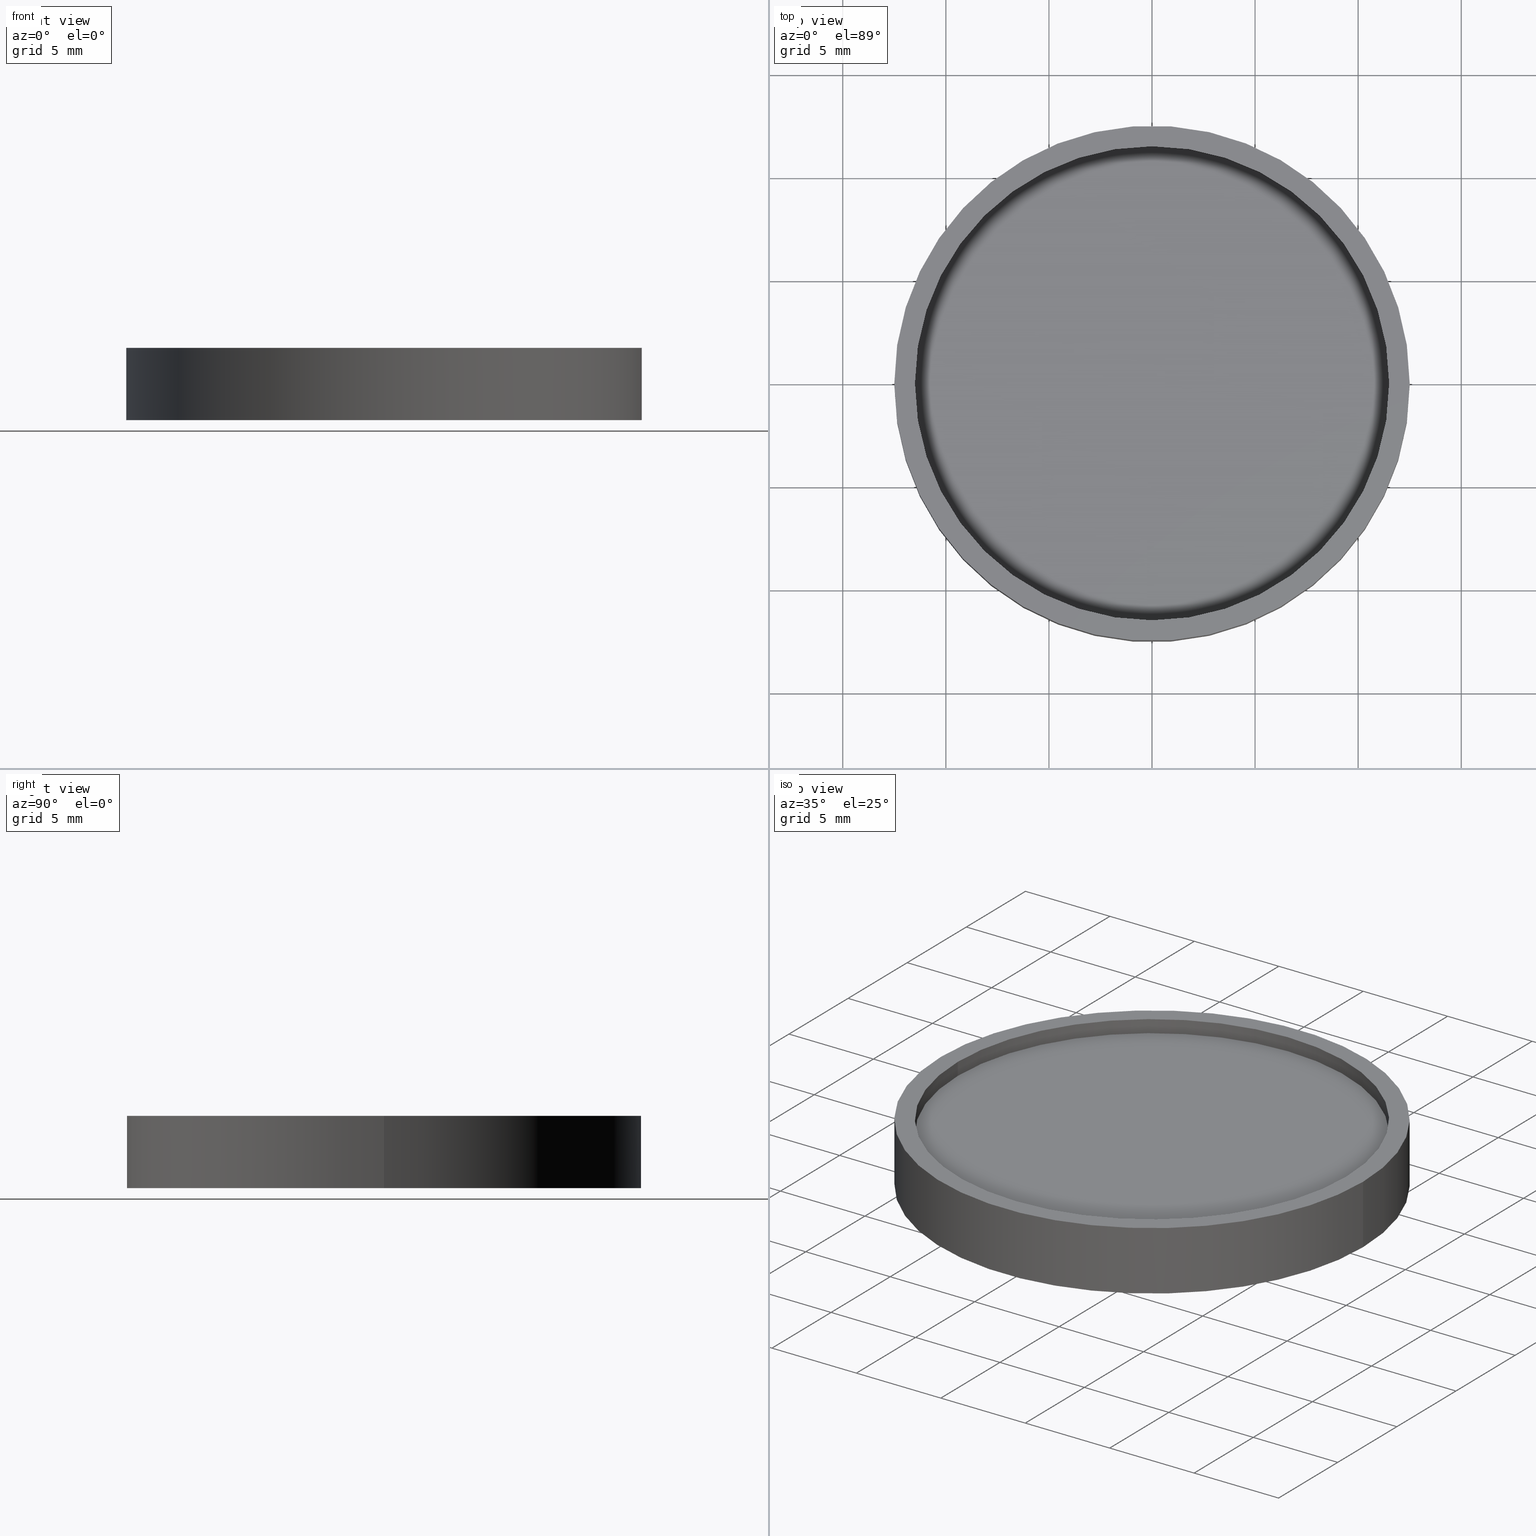
[diagram: canonical four-view strip — front | top / right | iso, engineering-drawing reading convention]
A machine part, canonical four-view strip (front | top / right | iso — engineering-drawing reading convention). The complete STEP part file that produces these views, byte-faithful:
ISO-10303-21;
HEADER;
FILE_DESCRIPTION (( 'STEP AP214' ),
    '1' );
FILE_NAME ('GNIF-045-350-D25.STEP',
    '2024-08-13T06:39:43',
    ( 'Windows User' ),
    ( 'P R C' ),
    'SwSTEP 2.0',
    'SolidWorks 2022',
    '' );
FILE_SCHEMA (( 'AUTOMOTIVE_DESIGN' ));
ENDSEC;

DATA;
#1 = FACE_OUTER_BOUND ( 'NONE', #230, .T. ) ;
#2 = ADVANCED_FACE ( 'NONE', ( #293 ), #280, .F. ) ;
#3 = ORIENTED_EDGE ( 'NONE', *, *, #220, .F. ) ;
#4 = PRESENTATION_STYLE_ASSIGNMENT (( #57 ) ) ;
#5 = EDGE_LOOP ( 'NONE', ( #396, #56 ) ) ;
#6 =( NAMED_UNIT ( * ) SI_UNIT ( $, .STERADIAN. ) SOLID_ANGLE_UNIT ( ) );
#7 = AXIS2_PLACEMENT_3D ( 'NONE', #173, #273, #400 ) ;
#8 = ORIENTED_EDGE ( 'NONE', *, *, #74, .F. ) ;
#9 = FILL_AREA_STYLE_COLOUR ( '', #102 ) ;
#10 = ORIENTED_EDGE ( 'NONE', *, *, #328, .F. ) ;
#11 = PRESENTATION_STYLE_ASSIGNMENT (( #42 ) ) ;
#12 = FACE_OUTER_BOUND ( 'NONE', #107, .T. ) ;
#13 = PLANE ( 'NONE',  #263 ) ;
#14 = VECTOR ( 'NONE', #311, 1000.000000000000000 ) ;
#15 = FILL_AREA_STYLE ('',( #240 ) ) ;
#16 = EDGE_CURVE ( 'NONE', #151, #324, #387, .T. ) ;
#17 = CLOSED_SHELL ( 'NONE', ( #178, #226, #302, #210, #135, #238, #391, #195, #272, #2 ) ) ;
#18 = DIRECTION ( 'NONE',  ( 1.000000000000000000, 0.000000000000000000, 0.000000000000000000 ) ) ;
#19 = MECHANICAL_DESIGN_GEOMETRIC_PRESENTATION_REPRESENTATION (  '', ( #383 ), #129 ) ;
#20 = DIRECTION ( 'NONE',  ( 0.000000000000000000, 0.000000000000000000, -1.000000000000000000 ) ) ;
#21 = AXIS2_PLACEMENT_3D ( 'NONE', #90, #341, #184 ) ;
#22 = FILL_AREA_STYLE ('',( #279 ) ) ;
#23 = EDGE_CURVE ( 'NONE', #324, #151, #369, .T. ) ;
#24 = DIRECTION ( 'NONE',  ( -1.000000000000000000, 0.000000000000000000, 0.000000000000000000 ) ) ;
#25 = AXIS2_PLACEMENT_3D ( 'NONE', #171, #141, #408 ) ;
#26 = ORIENTED_EDGE ( 'NONE', *, *, #51, .F. ) ;
#27 = DIRECTION ( 'NONE',  ( 0.000000000000000000, 0.000000000000000000, 1.000000000000000000 ) ) ;
#28 =( LENGTH_UNIT ( ) NAMED_UNIT ( * ) SI_UNIT ( .MILLI., .METRE. ) );
#29 = FACE_OUTER_BOUND ( 'NONE', #332, .T. ) ;
#30 = FILL_AREA_STYLE ('',( #415 ) ) ;
#31 =( GEOMETRIC_REPRESENTATION_CONTEXT ( 3 ) GLOBAL_UNCERTAINTY_ASSIGNED_CONTEXT ( ( #251 ) ) GLOBAL_UNIT_ASSIGNED_CONTEXT ( ( #123, #152, #315 ) ) REPRESENTATION_CONTEXT ( 'NONE', 'WORKASPACE' ) );
#32 =( GEOMETRIC_REPRESENTATION_CONTEXT ( 3 ) GLOBAL_UNCERTAINTY_ASSIGNED_CONTEXT ( ( #317 ) ) GLOBAL_UNIT_ASSIGNED_CONTEXT ( ( #28, #147, #50 ) ) REPRESENTATION_CONTEXT ( 'NONE', 'WORKASPACE' ) );
#33 = VECTOR ( 'NONE', #112, 1000.000000000000000 ) ;
#34 = PRESENTATION_LAYER_ASSIGNMENT (  '', '', ( #126 ) ) ;
#35 = VERTEX_POINT ( 'NONE', #75 ) ;
#36 = DIRECTION ( 'NONE',  ( 1.000000000000000000, 0.000000000000000000, -0.000000000000000000 ) ) ;
#37 = CIRCLE ( 'NONE', #21, 12.50000000000000000 ) ;
#38 = FILL_AREA_STYLE ('',( #133 ) ) ;
#39 =( NAMED_UNIT ( * ) SI_UNIT ( $, .STERADIAN. ) SOLID_ANGLE_UNIT ( ) );
#40 = AXIS2_PLACEMENT_3D ( 'NONE', #351, #376, #143 ) ;
#41 = SURFACE_SIDE_STYLE ('',( #393 ) ) ;
#42 = SURFACE_STYLE_USAGE ( .BOTH. , #364 ) ;
#43 = EDGE_LOOP ( 'NONE', ( #198, #98 ) ) ;
#44 =( LENGTH_UNIT ( ) NAMED_UNIT ( * ) SI_UNIT ( .MILLI., .METRE. ) );
#45 = SURFACE_STYLE_USAGE ( .BOTH. , #145 ) ;
#46 = FILL_AREA_STYLE_COLOUR ( '', #312 ) ;
#47 = FILL_AREA_STYLE ('',( #9 ) ) ;
#48 = EDGE_CURVE ( 'NONE', #299, #268, #374, .T. ) ;
#49 = DIRECTION ( 'NONE',  ( -0.7071067811865467956, 0.000000000000000000, -0.7071067811865483499 ) ) ;
#50 =( NAMED_UNIT ( * ) SI_UNIT ( $, .STERADIAN. ) SOLID_ANGLE_UNIT ( ) );
#51 = EDGE_CURVE ( 'NONE', #35, #282, #297, .T. ) ;
#52 = AXIS2_PLACEMENT_3D ( 'NONE', #319, #88, #283 ) ;
#53 = STYLED_ITEM ( 'NONE', ( #216 ), #210 ) ;
#54 = FILL_AREA_STYLE_COLOUR ( '', #81 ) ;
#55 = SURFACE_STYLE_FILL_AREA ( #15 ) ;
#56 = ORIENTED_EDGE ( 'NONE', *, *, #328, .T. ) ;
#57 = SURFACE_STYLE_USAGE ( .BOTH. , #163 ) ;
#58 = DIRECTION ( 'NONE',  ( -0.000000000000000000, -0.000000000000000000, -1.000000000000000000 ) ) ;
#59 = UNCERTAINTY_MEASURE_WITH_UNIT (LENGTH_MEASURE( 1.000000000000000082E-05 ), #116, 'distance_accuracy_value', 'NONE');
#60 = CARTESIAN_POINT ( 'NONE',  ( -12.50000000000000000, 0.000000000000000000, 3.500000000000000000 ) ) ;
#61 = SURFACE_SIDE_STYLE ('',( #185 ) ) ;
#62 =( NAMED_UNIT ( * ) PLANE_ANGLE_UNIT ( ) SI_UNIT ( $, .RADIAN. ) );
#63 = DIRECTION ( 'NONE',  ( 0.000000000000000000, 0.000000000000000000, 1.000000000000000000 ) ) ;
#64 = PRESENTATION_STYLE_ASSIGNMENT (( #296 ) ) ;
#65 =( GEOMETRIC_REPRESENTATION_CONTEXT ( 3 ) GLOBAL_UNCERTAINTY_ASSIGNED_CONTEXT ( ( #153 ) ) GLOBAL_UNIT_ASSIGNED_CONTEXT ( ( #389, #419, #223 ) ) REPRESENTATION_CONTEXT ( 'NONE', 'WORKASPACE' ) );
#66 =( NAMED_UNIT ( * ) SI_UNIT ( $, .STERADIAN. ) SOLID_ANGLE_UNIT ( ) );
#67 = ADVANCED_BREP_SHAPE_REPRESENTATION ( 'GNIF-045-350-D25', ( #245, #146 ), #65 ) ;
#68 = ORIENTED_EDGE ( 'NONE', *, *, #257, .F. ) ;
#69 = STYLED_ITEM ( 'NONE', ( #333 ), #245 ) ;
#70 = DIRECTION ( 'NONE',  ( 0.000000000000000000, 0.000000000000000000, 1.000000000000000000 ) ) ;
#71 = STYLED_ITEM ( 'NONE', ( #313 ), #302 ) ;
#72 = ORIENTED_EDGE ( 'NONE', *, *, #48, .F. ) ;
#73 = LINE ( 'NONE', #202, #33 ) ;
#74 = EDGE_CURVE ( 'NONE', #164, #347, #73, .T. ) ;
#75 = CARTESIAN_POINT ( 'NONE',  ( 11.50000000000000000, 0.000000000000000000, 2.750000000000000000 ) ) ;
#76 = EDGE_CURVE ( 'NONE', #138, #151, #235, .T. ) ;
#77 = CARTESIAN_POINT ( 'NONE',  ( 0.000000000000000000, 0.000000000000000000, 0.000000000000000000 ) ) ;
#78 = CARTESIAN_POINT ( 'NONE',  ( 12.50000000000000000, 1.530808498934191521E-15, 3.500000000000000000 ) ) ;
#79 = EDGE_CURVE ( 'NONE', #347, #268, #156, .T. ) ;
#80 = SURFACE_STYLE_FILL_AREA ( #340 ) ;
#81 = COLOUR_RGB ( '',0.2235294117647058654, 0.2235294117647058654, 0.2235294117647058654 ) ;
#82 = CYLINDRICAL_SURFACE ( 'NONE', #162, 11.50000000000000000 ) ;
#83 =( NAMED_UNIT ( * ) SI_UNIT ( $, .STERADIAN. ) SOLID_ANGLE_UNIT ( ) );
#84 = CARTESIAN_POINT ( 'NONE',  ( 11.50000000000000000, 0.000000000000000000, 3.500000000000000000 ) ) ;
#85 = ORIENTED_EDGE ( 'NONE', *, *, #23, .T. ) ;
#86 = SURFACE_STYLE_USAGE ( .BOTH. , #61 ) ;
#87 =( NAMED_UNIT ( * ) PLANE_ANGLE_UNIT ( ) SI_UNIT ( $, .RADIAN. ) );
#88 = DIRECTION ( 'NONE',  ( 0.000000000000000000, 0.000000000000000000, 1.000000000000000000 ) ) ;
#89 = AXIS2_PLACEMENT_3D ( 'NONE', #175, #20, #24 ) ;
#90 = CARTESIAN_POINT ( 'NONE',  ( 0.000000000000000000, 0.000000000000000000, 3.500000000000000000 ) ) ;
#91 = PRESENTATION_LAYER_ASSIGNMENT (  '', '', ( #292 ) ) ;
#92 = VECTOR ( 'NONE', #166, 1000.000000000000000 ) ;
#93 = SURFACE_STYLE_FILL_AREA ( #30 ) ;
#94 = SURFACE_STYLE_FILL_AREA ( #384 ) ;
#95 = APPLICATION_PROTOCOL_DEFINITION ( 'draft international standard', 'automotive_design', 1998, #352 ) ;
#96 =( LENGTH_UNIT ( ) NAMED_UNIT ( * ) SI_UNIT ( .MILLI., .METRE. ) );
#97 = SURFACE_STYLE_USAGE ( .BOTH. , #192 ) ;
#98 = ORIENTED_EDGE ( 'NONE', *, *, #16, .F. ) ;
#99 =( LENGTH_UNIT ( ) NAMED_UNIT ( * ) SI_UNIT ( .MILLI., .METRE. ) );
#100 = PRESENTATION_LAYER_ASSIGNMENT (  '', '', ( #330 ) ) ;
#101 = ORIENTED_EDGE ( 'NONE', *, *, #401, .F. ) ;
#102 = COLOUR_RGB ( '',1.000000000000000000, 1.000000000000000000, 1.000000000000000000 ) ;
#103 = FILL_AREA_STYLE_COLOUR ( '', #343 ) ;
#104 = PRESENTATION_LAYER_ASSIGNMENT (  '', '', ( #418 ) ) ;
#105 = ORIENTED_EDGE ( 'NONE', *, *, #334, .F. ) ;
#106 = MECHANICAL_DESIGN_GEOMETRIC_PRESENTATION_REPRESENTATION (  '', ( #330 ), #32 ) ;
#107 = EDGE_LOOP ( 'NONE', ( #191, #119 ) ) ;
#108 = CARTESIAN_POINT ( 'NONE',  ( -12.25000000000000711, 0.000000000000000000, 0.000000000000000000 ) ) ;
#109 = CARTESIAN_POINT ( 'NONE',  ( 0.000000000000000000, 0.000000000000000000, 3.500000000000000000 ) ) ;
#110 = LINE ( 'NONE', #269, #228 ) ;
#111 = MECHANICAL_DESIGN_GEOMETRIC_PRESENTATION_REPRESENTATION (  '', ( #69 ), #165 ) ;
#112 = DIRECTION ( 'NONE',  ( 0.7071067811865467956, 8.659560562354925463E-17, -0.7071067811865483499 ) ) ;
#113 = FACE_OUTER_BOUND ( 'NONE', #329, .T. ) ;
#114 = MECHANICAL_DESIGN_GEOMETRIC_PRESENTATION_REPRESENTATION (  '', ( #385 ), #342 ) ;
#115 =( NAMED_UNIT ( * ) PLANE_ANGLE_UNIT ( ) SI_UNIT ( $, .RADIAN. ) );
#116 =( LENGTH_UNIT ( ) NAMED_UNIT ( * ) SI_UNIT ( .MILLI., .METRE. ) );
#117 = DIRECTION ( 'NONE',  ( -1.000000000000000000, 0.000000000000000000, 0.000000000000000000 ) ) ;
#118 = SURFACE_SIDE_STYLE ('',( #177 ) ) ;
#119 = ORIENTED_EDGE ( 'NONE', *, *, #334, .T. ) ;
#120 = CARTESIAN_POINT ( 'NONE',  ( 0.000000000000000000, 0.000000000000000000, 2.750000000000000000 ) ) ;
#121 = COLOUR_RGB ( '',0.2235294117647058654, 0.2235294117647058654, 0.2235294117647058654 ) ;
#122 = CARTESIAN_POINT ( 'NONE',  ( -11.50000000000000000, 1.408343819019456176E-15, 3.500000000000000000 ) ) ;
#123 =( LENGTH_UNIT ( ) NAMED_UNIT ( * ) SI_UNIT ( .MILLI., .METRE. ) );
#124 = EDGE_CURVE ( 'NONE', #299, #164, #392, .T. ) ;
#125 = UNCERTAINTY_MEASURE_WITH_UNIT (LENGTH_MEASURE( 1.000000000000000082E-05 ), #44, 'distance_accuracy_value', 'NONE');
#126 = STYLED_ITEM ( 'NONE', ( #281 ), #178 ) ;
#127 =( NAMED_UNIT ( * ) PLANE_ANGLE_UNIT ( ) SI_UNIT ( $, .RADIAN. ) );
#128 = CONICAL_SURFACE ( 'NONE', #159, 11.50000000000000000, 0.7853981633974471688 ) ;
#129 =( GEOMETRIC_REPRESENTATION_CONTEXT ( 3 ) GLOBAL_UNCERTAINTY_ASSIGNED_CONTEXT ( ( #187 ) ) GLOBAL_UNIT_ASSIGNED_CONTEXT ( ( #361, #229, #139 ) ) REPRESENTATION_CONTEXT ( 'NONE', 'WORKASPACE' ) );
#130 = SHAPE_DEFINITION_REPRESENTATION ( #189, #67 ) ;
#131 = CIRCLE ( 'NONE', #366, 11.50000000000000000 ) ;
#132 = ORIENTED_EDGE ( 'NONE', *, *, #124, .F. ) ;
#133 = FILL_AREA_STYLE_COLOUR ( '', #236 ) ;
#134 = PLANE ( 'NONE',  #322 ) ;
#135 = ADVANCED_FACE ( 'NONE', ( #306, #404 ), #13, .T. ) ;
#136 = ORIENTED_EDGE ( 'NONE', *, *, #79, .T. ) ;
#137 = PRODUCT_DEFINITION ( 'δ֪', '', #286, #182 ) ;
#138 = VERTEX_POINT ( 'NONE', #78 ) ;
#139 =( NAMED_UNIT ( * ) SI_UNIT ( $, .STERADIAN. ) SOLID_ANGLE_UNIT ( ) );
#140 = PLANE ( 'NONE',  #218 ) ;
#141 = DIRECTION ( 'NONE',  ( 0.000000000000000000, 0.000000000000000000, 1.000000000000000000 ) ) ;
#142 = MECHANICAL_DESIGN_GEOMETRIC_PRESENTATION_REPRESENTATION (  '', ( #292 ), #197 ) ;
#143 = DIRECTION ( 'NONE',  ( -1.000000000000000000, 0.000000000000000000, 0.000000000000000000 ) ) ;
#144 =( GEOMETRIC_REPRESENTATION_CONTEXT ( 3 ) GLOBAL_UNCERTAINTY_ASSIGNED_CONTEXT ( ( #287 ) ) GLOBAL_UNIT_ASSIGNED_CONTEXT ( ( #246, #348, #6 ) ) REPRESENTATION_CONTEXT ( 'NONE', 'WORKASPACE' ) );
#145 = SURFACE_SIDE_STYLE ('',( #278 ) ) ;
#146 = AXIS2_PLACEMENT_3D ( 'NONE', #255, #356, #386 ) ;
#147 =( NAMED_UNIT ( * ) PLANE_ANGLE_UNIT ( ) SI_UNIT ( $, .RADIAN. ) );
#148 = ORIENTED_EDGE ( 'NONE', *, *, #74, .T. ) ;
#149 = SURFACE_SIDE_STYLE ('',( #80 ) ) ;
#150 = DIRECTION ( 'NONE',  ( 1.000000000000000000, 0.000000000000000000, 0.000000000000000000 ) ) ;
#151 = VERTEX_POINT ( 'NONE', #371 ) ;
#152 =( NAMED_UNIT ( * ) PLANE_ANGLE_UNIT ( ) SI_UNIT ( $, .RADIAN. ) );
#153 = UNCERTAINTY_MEASURE_WITH_UNIT (LENGTH_MEASURE( 1.000000000000000082E-05 ), #389, 'distance_accuracy_value', 'NONE');
#154 = CARTESIAN_POINT ( 'NONE',  ( 0.000000000000000000, 0.000000000000000000, 3.500000000000000000 ) ) ;
#155 = CYLINDRICAL_SURFACE ( 'NONE', #417, 11.50000000000000000 ) ;
#156 = CIRCLE ( 'NONE', #271, 12.25000000000000711 ) ;
#157 = DIRECTION ( 'NONE',  ( 1.000000000000000000, 0.000000000000000000, 0.000000000000000000 ) ) ;
#158 = PRESENTATION_LAYER_ASSIGNMENT (  '', '', ( #69 ) ) ;
#159 = AXIS2_PLACEMENT_3D ( 'NONE', #205, #353, #359 ) ;
#160 = PRESENTATION_STYLE_ASSIGNMENT (( #97 ) ) ;
#161 =( GEOMETRIC_REPRESENTATION_CONTEXT ( 3 ) GLOBAL_UNCERTAINTY_ASSIGNED_CONTEXT ( ( #413 ) ) GLOBAL_UNIT_ASSIGNED_CONTEXT ( ( #99, #127, #224 ) ) REPRESENTATION_CONTEXT ( 'NONE', 'WORKASPACE' ) );
#162 = AXIS2_PLACEMENT_3D ( 'NONE', #409, #284, #412 ) ;
#163 = SURFACE_SIDE_STYLE ('',( #94 ) ) ;
#164 = VERTEX_POINT ( 'NONE', #375 ) ;
#165 =( GEOMETRIC_REPRESENTATION_CONTEXT ( 3 ) GLOBAL_UNCERTAINTY_ASSIGNED_CONTEXT ( ( #125 ) ) GLOBAL_UNIT_ASSIGNED_CONTEXT ( ( #44, #267, #39 ) ) REPRESENTATION_CONTEXT ( 'NONE', 'WORKASPACE' ) );
#166 = DIRECTION ( 'NONE',  ( -0.000000000000000000, -0.000000000000000000, 1.000000000000000000 ) ) ;
#167 = ORIENTED_EDGE ( 'NONE', *, *, #220, .T. ) ;
#168 = ORIENTED_EDGE ( 'NONE', *, *, #222, .F. ) ;
#169 = CARTESIAN_POINT ( 'NONE',  ( 0.000000000000000000, 0.000000000000000000, 2.750000000000000000 ) ) ;
#170 = ORIENTED_EDGE ( 'NONE', *, *, #288, .F. ) ;
#171 = CARTESIAN_POINT ( 'NONE',  ( 0.000000000000000000, 0.000000000000000000, 0.000000000000000000 ) ) ;
#172 = SURFACE_STYLE_USAGE ( .BOTH. , #234 ) ;
#173 = CARTESIAN_POINT ( 'NONE',  ( 0.000000000000000000, 0.000000000000000000, 0.000000000000000000 ) ) ;
#174 = DIRECTION ( 'NONE',  ( 0.000000000000000000, 0.000000000000000000, -1.000000000000000000 ) ) ;
#175 = CARTESIAN_POINT ( 'NONE',  ( 0.000000000000000000, 0.000000000000000000, 0.7500000000000000000 ) ) ;
#176 = MECHANICAL_DESIGN_GEOMETRIC_PRESENTATION_REPRESENTATION (  '', ( #418 ), #144 ) ;
#177 = SURFACE_STYLE_FILL_AREA ( #22 ) ;
#178 = ADVANCED_FACE ( 'NONE', ( #345 ), #128, .F. ) ;
#179 = CARTESIAN_POINT ( 'NONE',  ( 0.000000000000000000, 0.000000000000000000, 2.750000000000000000 ) ) ;
#180 = CARTESIAN_POINT ( 'NONE',  ( -12.50000000000000000, 0.000000000000000000, 3.500000000000000000 ) ) ;
#181 = AXIS2_PLACEMENT_3D ( 'NONE', #349, #274, #406 ) ;
#182 = PRODUCT_DEFINITION_CONTEXT ( 'detailed design', #352, 'design' ) ;
#183 = ORIENTED_EDGE ( 'NONE', *, *, #401, .T. ) ;
#184 = DIRECTION ( 'NONE',  ( 1.000000000000000000, 0.000000000000000000, 0.000000000000000000 ) ) ;
#185 = SURFACE_STYLE_FILL_AREA ( #411 ) ;
#186 = FACE_OUTER_BOUND ( 'NONE', #295, .T. ) ;
#187 = UNCERTAINTY_MEASURE_WITH_UNIT (LENGTH_MEASURE( 1.000000000000000082E-05 ), #361, 'distance_accuracy_value', 'NONE');
#188 = PLANE ( 'NONE',  #377 ) ;
#189 = PRODUCT_DEFINITION_SHAPE ( 'NONE', 'NONE',  #137 ) ;
#190 = MECHANICAL_DESIGN_GEOMETRIC_PRESENTATION_REPRESENTATION (  '', ( #53 ), #31 ) ;
#191 = ORIENTED_EDGE ( 'NONE', *, *, #124, .T. ) ;
#192 = SURFACE_SIDE_STYLE ('',( #93 ) ) ;
#193 = MECHANICAL_DESIGN_GEOMETRIC_PRESENTATION_REPRESENTATION (  '', ( #249 ), #354 ) ;
#194 = ORIENTED_EDGE ( 'NONE', *, *, #259, .T. ) ;
#195 = ADVANCED_FACE ( 'NONE', ( #323 ), #188, .T. ) ;
#196 = CARTESIAN_POINT ( 'NONE',  ( 11.50000000000000000, 0.000000000000000000, 2.750000000000000000 ) ) ;
#197 =( GEOMETRIC_REPRESENTATION_CONTEXT ( 3 ) GLOBAL_UNCERTAINTY_ASSIGNED_CONTEXT ( ( #215 ) ) GLOBAL_UNIT_ASSIGNED_CONTEXT ( ( #360, #225, #66 ) ) REPRESENTATION_CONTEXT ( 'NONE', 'WORKASPACE' ) );
#198 = ORIENTED_EDGE ( 'NONE', *, *, #23, .F. ) ;
#199 = DIRECTION ( 'NONE',  ( -0.000000000000000000, -0.000000000000000000, 1.000000000000000000 ) ) ;
#200 = EDGE_LOOP ( 'NONE', ( #105, #148, #168, #72 ) ) ;
#201 = ORIENTED_EDGE ( 'NONE', *, *, #206, .T. ) ;
#202 = CARTESIAN_POINT ( 'NONE',  ( 11.50000000000000000, 1.408343819019456176E-15, 0.7500000000000093259 ) ) ;
#203 = CARTESIAN_POINT ( 'NONE',  ( 0.000000000000000000, 0.000000000000000000, 0.000000000000000000 ) ) ;
#204 = PRESENTATION_LAYER_ASSIGNMENT (  '', '', ( #71 ) ) ;
#205 = CARTESIAN_POINT ( 'NONE',  ( 0.000000000000000000, 0.000000000000000000, 0.7500000000000093259 ) ) ;
#206 = EDGE_CURVE ( 'NONE', #35, #362, #285, .T. ) ;
#207 = DIRECTION ( 'NONE',  ( 0.000000000000000000, 0.000000000000000000, 1.000000000000000000 ) ) ;
#208 = SURFACE_STYLE_USAGE ( .BOTH. , #149 ) ;
#209 =( LENGTH_UNIT ( ) NAMED_UNIT ( * ) SI_UNIT ( .MILLI., .METRE. ) );
#210 = ADVANCED_FACE ( 'NONE', ( #1 ), #318, .T. ) ;
#211 = LINE ( 'NONE', #60, #346 ) ;
#212 = ORIENTED_EDGE ( 'NONE', *, *, #76, .T. ) ;
#213 = CIRCLE ( 'NONE', #181, 11.50000000000000000 ) ;
#214 = CYLINDRICAL_SURFACE ( 'NONE', #40, 12.50000000000000000 ) ;
#215 = UNCERTAINTY_MEASURE_WITH_UNIT (LENGTH_MEASURE( 1.000000000000000082E-05 ), #360, 'distance_accuracy_value', 'NONE');
#216 = PRESENTATION_STYLE_ASSIGNMENT (( #86 ) ) ;
#217 = CARTESIAN_POINT ( 'NONE',  ( 0.000000000000000000, 0.000000000000000000, 3.500000000000000000 ) ) ;
#218 = AXIS2_PLACEMENT_3D ( 'NONE', #237, #174, #304 ) ;
#219 =( NAMED_UNIT ( * ) SI_UNIT ( $, .STERADIAN. ) SOLID_ANGLE_UNIT ( ) );
#220 = EDGE_CURVE ( 'NONE', #362, #365, #227, .T. ) ;
#221 = CARTESIAN_POINT ( 'NONE',  ( 0.000000000000000000, 0.000000000000000000, 0.7500000000000093259 ) ) ;
#222 = EDGE_CURVE ( 'NONE', #268, #347, #275, .T. ) ;
#223 =( NAMED_UNIT ( * ) SI_UNIT ( $, .STERADIAN. ) SOLID_ANGLE_UNIT ( ) );
#224 =( NAMED_UNIT ( * ) SI_UNIT ( $, .STERADIAN. ) SOLID_ANGLE_UNIT ( ) );
#225 =( NAMED_UNIT ( * ) PLANE_ANGLE_UNIT ( ) SI_UNIT ( $, .RADIAN. ) );
#226 = ADVANCED_FACE ( 'NONE', ( #29 ), #155, .F. ) ;
#227 = CIRCLE ( 'NONE', #344, 11.50000000000000000 ) ;
#228 = VECTOR ( 'NONE', #395, 1000.000000000000000 ) ;
#229 =( NAMED_UNIT ( * ) PLANE_ANGLE_UNIT ( ) SI_UNIT ( $, .RADIAN. ) );
#230 = EDGE_LOOP ( 'NONE', ( #265, #170, #335, #85 ) ) ;
#231 = MECHANICAL_DESIGN_GEOMETRIC_PRESENTATION_REPRESENTATION (  '', ( #126 ), #161 ) ;
#232 = COLOUR_RGB ( '',0.2235294117647058654, 0.2235294117647058654, 0.2235294117647058654 ) ;
#233 = EDGE_LOOP ( 'NONE', ( #388, #183 ) ) ;
#234 = SURFACE_SIDE_STYLE ('',( #372 ) ) ;
#235 = LINE ( 'NONE', #239, #14 ) ;
#236 = COLOUR_RGB ( '',0.2235294117647058654, 0.2235294117647058654, 0.2235294117647058654 ) ;
#237 = CARTESIAN_POINT ( 'NONE',  ( 0.000000000000000000, 0.000000000000000000, 0.7500000000000000000 ) ) ;
#238 = ADVANCED_FACE ( 'NONE', ( #331, #327 ), #134, .F. ) ;
#239 = CARTESIAN_POINT ( 'NONE',  ( 12.50000000000000000, 1.530808498934191521E-15, 3.500000000000000000 ) ) ;
#240 = FILL_AREA_STYLE_COLOUR ( '', #121 ) ;
#241 = DIRECTION ( 'NONE',  ( 0.000000000000000000, 0.000000000000000000, -1.000000000000000000 ) ) ;
#242 = PRESENTATION_LAYER_ASSIGNMENT (  '', '', ( #385 ) ) ;
#243 = CARTESIAN_POINT ( 'NONE',  ( -12.50000000000000000, 0.000000000000000000, 0.000000000000000000 ) ) ;
#244 = DIRECTION ( 'NONE',  ( 1.000000000000000000, 0.000000000000000000, -0.000000000000000000 ) ) ;
#245 = MANIFOLD_SOLID_BREP ( '����1', #17 ) ;
#246 =( LENGTH_UNIT ( ) NAMED_UNIT ( * ) SI_UNIT ( .MILLI., .METRE. ) );
#247 =( NAMED_UNIT ( * ) SI_UNIT ( $, .STERADIAN. ) SOLID_ANGLE_UNIT ( ) );
#248 = ORIENTED_EDGE ( 'NONE', *, *, #259, .F. ) ;
#249 = STYLED_ITEM ( 'NONE', ( #160 ), #67 ) ;
#250 = CARTESIAN_POINT ( 'NONE',  ( 0.000000000000000000, 0.000000000000000000, 2.750000000000000000 ) ) ;
#251 = UNCERTAINTY_MEASURE_WITH_UNIT (LENGTH_MEASURE( 1.000000000000000082E-05 ), #123, 'distance_accuracy_value', 'NONE');
#252 = DIRECTION ( 'NONE',  ( -1.000000000000000000, 0.000000000000000000, 0.000000000000000000 ) ) ;
#253 = COLOUR_RGB ( '',0.2235294117647058654, 0.2235294117647058654, 0.2235294117647058654 ) ;
#254 = FILL_AREA_STYLE_COLOUR ( '', #363 ) ;
#255 = CARTESIAN_POINT ( 'NONE',  ( 0.000000000000000000, 0.000000000000000000, 0.000000000000000000 ) ) ;
#256 = PRODUCT ( 'GNIF-045-350-D25', 'GNIF-045-350-D25', '', ( #358 ) ) ;
#257 = EDGE_CURVE ( 'NONE', #365, #362, #398, .T. ) ;
#258 = ORIENTED_EDGE ( 'NONE', *, *, #48, .T. ) ;
#259 = EDGE_CURVE ( 'NONE', #282, #365, #110, .T. ) ;
#260 = ORIENTED_EDGE ( 'NONE', *, *, #16, .T. ) ;
#261 = CARTESIAN_POINT ( 'NONE',  ( -11.50000000000000000, 1.408343819019456176E-15, 2.750000000000000000 ) ) ;
#262 = ORIENTED_EDGE ( 'NONE', *, *, #222, .T. ) ;
#263 = AXIS2_PLACEMENT_3D ( 'NONE', #109, #373, #244 ) ;
#264 = SURFACE_STYLE_FILL_AREA ( #270 ) ;
#265 = ORIENTED_EDGE ( 'NONE', *, *, #76, .F. ) ;
#266 = AXIS2_PLACEMENT_3D ( 'NONE', #154, #416, #252 ) ;
#267 =( NAMED_UNIT ( * ) PLANE_ANGLE_UNIT ( ) SI_UNIT ( $, .RADIAN. ) );
#268 = VERTEX_POINT ( 'NONE', #108 ) ;
#269 = CARTESIAN_POINT ( 'NONE',  ( -11.50000000000000000, 1.408343819019456176E-15, 2.750000000000000000 ) ) ;
#270 = FILL_AREA_STYLE ('',( #103 ) ) ;
#271 = AXIS2_PLACEMENT_3D ( 'NONE', #203, #337, #18 ) ;
#272 = ADVANCED_FACE ( 'NONE', ( #12 ), #140, .T. ) ;
#273 = DIRECTION ( 'NONE',  ( 0.000000000000000000, 0.000000000000000000, 1.000000000000000000 ) ) ;
#274 = DIRECTION ( 'NONE',  ( 0.000000000000000000, 0.000000000000000000, -1.000000000000000000 ) ) ;
#275 = CIRCLE ( 'NONE', #52, 12.25000000000000711 ) ;
#276 = SURFACE_SIDE_STYLE ('',( #55 ) ) ;
#277 = CIRCLE ( 'NONE', #339, 12.50000000000000000 ) ;
#278 = SURFACE_STYLE_FILL_AREA ( #336 ) ;
#279 = FILL_AREA_STYLE_COLOUR ( '', #232 ) ;
#280 = CONICAL_SURFACE ( 'NONE', #355, 11.50000000000000000, 0.7853981633974471688 ) ;
#281 = PRESENTATION_STYLE_ASSIGNMENT (( #208 ) ) ;
#282 = VERTEX_POINT ( 'NONE', #261 ) ;
#283 = DIRECTION ( 'NONE',  ( 1.000000000000000000, 0.000000000000000000, 0.000000000000000000 ) ) ;
#284 = DIRECTION ( 'NONE',  ( -0.000000000000000000, -0.000000000000000000, 1.000000000000000000 ) ) ;
#285 = LINE ( 'NONE', #196, #92 ) ;
#286 = PRODUCT_DEFINITION_FORMATION_WITH_SPECIFIED_SOURCE ( '�κ�', '', #256, .NOT_KNOWN. ) ;
#287 = UNCERTAINTY_MEASURE_WITH_UNIT (LENGTH_MEASURE( 1.000000000000000082E-05 ), #246, 'distance_accuracy_value', 'NONE');
#288 = EDGE_CURVE ( 'NONE', #390, #138, #37, .T. ) ;
#289 = APPLICATION_PROTOCOL_DEFINITION ( 'draft international standard', 'automotive_design', 1998, #357 ) ;
#290 = MECHANICAL_DESIGN_GEOMETRIC_PRESENTATION_REPRESENTATION (  '', ( #71 ), #310 ) ;
#291 = ORIENTED_EDGE ( 'NONE', *, *, #206, .F. ) ;
#292 = STYLED_ITEM ( 'NONE', ( #64 ), #2 ) ;
#293 = FACE_OUTER_BOUND ( 'NONE', #410, .T. ) ;
#294 = DIRECTION ( 'NONE',  ( 1.000000000000000000, 0.000000000000000000, 0.000000000000000000 ) ) ;
#295 = EDGE_LOOP ( 'NONE', ( #248, #26, #201, #167 ) ) ;
#296 = SURFACE_STYLE_USAGE ( .BOTH. , #41 ) ;
#297 = CIRCLE ( 'NONE', #305, 11.50000000000000000 ) ;
#298 = DIRECTION ( 'NONE',  ( 1.000000000000000000, 0.000000000000000000, -0.000000000000000000 ) ) ;
#299 = VERTEX_POINT ( 'NONE', #382 ) ;
#300 = DIRECTION ( 'NONE',  ( 1.000000000000000000, 0.000000000000000000, 0.000000000000000000 ) ) ;
#301 = PRESENTATION_STYLE_ASSIGNMENT (( #45 ) ) ;
#302 = ADVANCED_FACE ( 'NONE', ( #113 ), #214, .T. ) ;
#303 = DIRECTION ( 'NONE',  ( 1.000000000000000000, 0.000000000000000000, 0.000000000000000000 ) ) ;
#304 = DIRECTION ( 'NONE',  ( -1.000000000000000000, 0.000000000000000000, -0.000000000000000000 ) ) ;
#305 = AXIS2_PLACEMENT_3D ( 'NONE', #179, #397, #303 ) ;
#306 = FACE_BOUND ( 'NONE', #325, .T. ) ;
#307 = PRESENTATION_LAYER_ASSIGNMENT (  '', '', ( #383 ) ) ;
#308 = AXIS2_PLACEMENT_3D ( 'NONE', #367, #370, #300 ) ;
#309 = SURFACE_STYLE_USAGE ( .BOTH. , #276 ) ;
#310 =( GEOMETRIC_REPRESENTATION_CONTEXT ( 3 ) GLOBAL_UNCERTAINTY_ASSIGNED_CONTEXT ( ( #59 ) ) GLOBAL_UNIT_ASSIGNED_CONTEXT ( ( #116, #87, #247 ) ) REPRESENTATION_CONTEXT ( 'NONE', 'WORKASPACE' ) );
#311 = DIRECTION ( 'NONE',  ( -0.000000000000000000, -0.000000000000000000, -1.000000000000000000 ) ) ;
#312 = COLOUR_RGB ( '',0.2235294117647058654, 0.2235294117647058654, 0.2235294117647058654 ) ;
#313 = PRESENTATION_STYLE_ASSIGNMENT (( #379 ) ) ;
#314 = EDGE_LOOP ( 'NONE', ( #262, #136 ) ) ;
#315 =( NAMED_UNIT ( * ) SI_UNIT ( $, .STERADIAN. ) SOLID_ANGLE_UNIT ( ) );
#316 = PRESENTATION_STYLE_ASSIGNMENT (( #309 ) ) ;
#317 = UNCERTAINTY_MEASURE_WITH_UNIT (LENGTH_MEASURE( 1.000000000000000082E-05 ), #28, 'distance_accuracy_value', 'NONE');
#318 = CYLINDRICAL_SURFACE ( 'NONE', #266, 12.50000000000000000 ) ;
#319 = CARTESIAN_POINT ( 'NONE',  ( 0.000000000000000000, 0.000000000000000000, 0.000000000000000000 ) ) ;
#320 = CARTESIAN_POINT ( 'NONE',  ( 0.000000000000000000, 0.000000000000000000, 3.500000000000000000 ) ) ;
#321 = PRODUCT_RELATED_PRODUCT_CATEGORY ( 'part', '', ( #256 ) ) ;
#322 = AXIS2_PLACEMENT_3D ( 'NONE', #77, #70, #298 ) ;
#323 = FACE_OUTER_BOUND ( 'NONE', #5, .T. ) ;
#324 = VERTEX_POINT ( 'NONE', #243 ) ;
#325 = EDGE_LOOP ( 'NONE', ( #3, #68 ) ) ;
#326 = PRESENTATION_LAYER_ASSIGNMENT (  '', '', ( #53 ) ) ;
#327 = FACE_OUTER_BOUND ( 'NONE', #43, .T. ) ;
#328 = EDGE_CURVE ( 'NONE', #282, #35, #131, .T. ) ;
#329 = EDGE_LOOP ( 'NONE', ( #101, #212, #260, #394 ) ) ;
#330 = STYLED_ITEM ( 'NONE', ( #316 ), #391 ) ;
#331 = FACE_BOUND ( 'NONE', #314, .T. ) ;
#332 = EDGE_LOOP ( 'NONE', ( #10, #194, #403, #291 ) ) ;
#333 = PRESENTATION_STYLE_ASSIGNMENT (( #172 ) ) ;
#334 = EDGE_CURVE ( 'NONE', #164, #299, #213, .T. ) ;
#335 = ORIENTED_EDGE ( 'NONE', *, *, #350, .T. ) ;
#336 = FILL_AREA_STYLE ('',( #46 ) ) ;
#337 = DIRECTION ( 'NONE',  ( 0.000000000000000000, 0.000000000000000000, 1.000000000000000000 ) ) ;
#338 = DIRECTION ( 'NONE',  ( 1.000000000000000000, 0.000000000000000000, 0.000000000000000000 ) ) ;
#339 = AXIS2_PLACEMENT_3D ( 'NONE', #320, #63, #157 ) ;
#340 = FILL_AREA_STYLE ('',( #54 ) ) ;
#341 = DIRECTION ( 'NONE',  ( 0.000000000000000000, 0.000000000000000000, 1.000000000000000000 ) ) ;
#342 =( GEOMETRIC_REPRESENTATION_CONTEXT ( 3 ) GLOBAL_UNCERTAINTY_ASSIGNED_CONTEXT ( ( #380 ) ) GLOBAL_UNIT_ASSIGNED_CONTEXT ( ( #209, #115, #83 ) ) REPRESENTATION_CONTEXT ( 'NONE', 'WORKASPACE' ) );
#343 = COLOUR_RGB ( '',0.2235294117647058654, 0.2235294117647058654, 0.2235294117647058654 ) ;
#344 = AXIS2_PLACEMENT_3D ( 'NONE', #217, #378, #294 ) ;
#345 = FACE_OUTER_BOUND ( 'NONE', #200, .T. ) ;
#346 = VECTOR ( 'NONE', #58, 1000.000000000000000 ) ;
#347 = VERTEX_POINT ( 'NONE', #399 ) ;
#348 =( NAMED_UNIT ( * ) PLANE_ANGLE_UNIT ( ) SI_UNIT ( $, .RADIAN. ) );
#349 = CARTESIAN_POINT ( 'NONE',  ( 0.000000000000000000, 0.000000000000000000, 0.7500000000000000000 ) ) ;
#350 = EDGE_CURVE ( 'NONE', #390, #324, #211, .T. ) ;
#351 = CARTESIAN_POINT ( 'NONE',  ( 0.000000000000000000, 0.000000000000000000, 3.500000000000000000 ) ) ;
#352 = APPLICATION_CONTEXT ( 'automotive_design' ) ;
#353 = DIRECTION ( 'NONE',  ( 0.000000000000000000, 0.000000000000000000, -1.000000000000000000 ) ) ;
#354 =( GEOMETRIC_REPRESENTATION_CONTEXT ( 3 ) GLOBAL_UNCERTAINTY_ASSIGNED_CONTEXT ( ( #407 ) ) GLOBAL_UNIT_ASSIGNED_CONTEXT ( ( #96, #62, #219 ) ) REPRESENTATION_CONTEXT ( 'NONE', 'WORKASPACE' ) );
#355 = AXIS2_PLACEMENT_3D ( 'NONE', #221, #241, #117 ) ;
#356 = DIRECTION ( 'NONE',  ( 0.000000000000000000, 0.000000000000000000, 1.000000000000000000 ) ) ;
#357 = APPLICATION_CONTEXT ( 'automotive_design' ) ;
#358 = PRODUCT_CONTEXT ( 'NONE', #357, 'mechanical' ) ;
#359 = DIRECTION ( 'NONE',  ( -1.000000000000000000, 0.000000000000000000, 0.000000000000000000 ) ) ;
#360 =( LENGTH_UNIT ( ) NAMED_UNIT ( * ) SI_UNIT ( .MILLI., .METRE. ) );
#361 =( LENGTH_UNIT ( ) NAMED_UNIT ( * ) SI_UNIT ( .MILLI., .METRE. ) );
#362 = VERTEX_POINT ( 'NONE', #84 ) ;
#363 = COLOUR_RGB ( '',0.2235294117647058654, 0.2235294117647058654, 0.2235294117647058654 ) ;
#364 = SURFACE_SIDE_STYLE ('',( #264 ) ) ;
#365 = VERTEX_POINT ( 'NONE', #122 ) ;
#366 = AXIS2_PLACEMENT_3D ( 'NONE', #250, #207, #150 ) ;
#367 = CARTESIAN_POINT ( 'NONE',  ( 0.000000000000000000, 0.000000000000000000, 3.500000000000000000 ) ) ;
#368 = CARTESIAN_POINT ( 'NONE',  ( -11.50000000000000000, 0.000000000000000000, 0.7500000000000093259 ) ) ;
#369 = CIRCLE ( 'NONE', #7, 12.50000000000000000 ) ;
#370 = DIRECTION ( 'NONE',  ( 0.000000000000000000, 0.000000000000000000, 1.000000000000000000 ) ) ;
#371 = CARTESIAN_POINT ( 'NONE',  ( 12.50000000000000000, 1.530808498934191521E-15, 0.000000000000000000 ) ) ;
#372 = SURFACE_STYLE_FILL_AREA ( #47 ) ;
#373 = DIRECTION ( 'NONE',  ( 0.000000000000000000, 0.000000000000000000, 1.000000000000000000 ) ) ;
#374 = LINE ( 'NONE', #368, #405 ) ;
#375 = CARTESIAN_POINT ( 'NONE',  ( 11.50000000000000000, 1.454268073987482448E-15, 0.7500000000000000000 ) ) ;
#376 = DIRECTION ( 'NONE',  ( -0.000000000000000000, -0.000000000000000000, -1.000000000000000000 ) ) ;
#377 = AXIS2_PLACEMENT_3D ( 'NONE', #120, #27, #36 ) ;
#378 = DIRECTION ( 'NONE',  ( 0.000000000000000000, 0.000000000000000000, 1.000000000000000000 ) ) ;
#379 = SURFACE_STYLE_USAGE ( .BOTH. , #118 ) ;
#380 = UNCERTAINTY_MEASURE_WITH_UNIT (LENGTH_MEASURE( 1.000000000000000082E-05 ), #209, 'distance_accuracy_value', 'NONE');
#381 = PRESENTATION_LAYER_ASSIGNMENT (  '', '', ( #249 ) ) ;
#382 = CARTESIAN_POINT ( 'NONE',  ( -11.50000000000000000, 0.000000000000000000, 0.7500000000000000000 ) ) ;
#383 = STYLED_ITEM ( 'NONE', ( #11 ), #238 ) ;
#384 = FILL_AREA_STYLE ('',( #254 ) ) ;
#385 = STYLED_ITEM ( 'NONE', ( #301 ), #135 ) ;
#386 = DIRECTION ( 'NONE',  ( 1.000000000000000000, 0.000000000000000000, 0.000000000000000000 ) ) ;
#387 = CIRCLE ( 'NONE', #25, 12.50000000000000000 ) ;
#388 = ORIENTED_EDGE ( 'NONE', *, *, #288, .T. ) ;
#389 =( LENGTH_UNIT ( ) NAMED_UNIT ( * ) SI_UNIT ( .MILLI., .METRE. ) );
#390 = VERTEX_POINT ( 'NONE', #180 ) ;
#391 = ADVANCED_FACE ( 'NONE', ( #186 ), #82, .F. ) ;
#392 = CIRCLE ( 'NONE', #89, 11.50000000000000000 ) ;
#393 = SURFACE_STYLE_FILL_AREA ( #38 ) ;
#394 = ORIENTED_EDGE ( 'NONE', *, *, #350, .F. ) ;
#395 = DIRECTION ( 'NONE',  ( -0.000000000000000000, -0.000000000000000000, 1.000000000000000000 ) ) ;
#396 = ORIENTED_EDGE ( 'NONE', *, *, #51, .T. ) ;
#397 = DIRECTION ( 'NONE',  ( 0.000000000000000000, 0.000000000000000000, 1.000000000000000000 ) ) ;
#398 = CIRCLE ( 'NONE', #308, 11.50000000000000000 ) ;
#399 = CARTESIAN_POINT ( 'NONE',  ( 12.25000000000000711, 1.500192328955508523E-15, 0.000000000000000000 ) ) ;
#400 = DIRECTION ( 'NONE',  ( 1.000000000000000000, 0.000000000000000000, 0.000000000000000000 ) ) ;
#401 = EDGE_CURVE ( 'NONE', #138, #390, #277, .T. ) ;
#402 = COLOUR_RGB ( '',1.000000000000000000, 1.000000000000000000, 1.000000000000000000 ) ;
#403 = ORIENTED_EDGE ( 'NONE', *, *, #257, .T. ) ;
#404 = FACE_OUTER_BOUND ( 'NONE', #233, .T. ) ;
#405 = VECTOR ( 'NONE', #49, 1000.000000000000000 ) ;
#406 = DIRECTION ( 'NONE',  ( -1.000000000000000000, 0.000000000000000000, 0.000000000000000000 ) ) ;
#407 = UNCERTAINTY_MEASURE_WITH_UNIT (LENGTH_MEASURE( 1.000000000000000082E-05 ), #96, 'distance_accuracy_value', 'NONE');
#408 = DIRECTION ( 'NONE',  ( 1.000000000000000000, 0.000000000000000000, 0.000000000000000000 ) ) ;
#409 = CARTESIAN_POINT ( 'NONE',  ( 0.000000000000000000, 0.000000000000000000, 2.750000000000000000 ) ) ;
#410 = EDGE_LOOP ( 'NONE', ( #8, #132, #258, #420 ) ) ;
#411 = FILL_AREA_STYLE ('',( #414 ) ) ;
#412 = DIRECTION ( 'NONE',  ( 1.000000000000000000, 0.000000000000000000, 0.000000000000000000 ) ) ;
#413 = UNCERTAINTY_MEASURE_WITH_UNIT (LENGTH_MEASURE( 1.000000000000000082E-05 ), #99, 'distance_accuracy_value', 'NONE');
#414 = FILL_AREA_STYLE_COLOUR ( '', #253 ) ;
#415 = FILL_AREA_STYLE_COLOUR ( '', #402 ) ;
#416 = DIRECTION ( 'NONE',  ( -0.000000000000000000, -0.000000000000000000, -1.000000000000000000 ) ) ;
#417 = AXIS2_PLACEMENT_3D ( 'NONE', #169, #199, #338 ) ;
#418 = STYLED_ITEM ( 'NONE', ( #4 ), #226 ) ;
#419 =( NAMED_UNIT ( * ) PLANE_ANGLE_UNIT ( ) SI_UNIT ( $, .RADIAN. ) );
#420 = ORIENTED_EDGE ( 'NONE', *, *, #79, .F. ) ;
ENDSEC;
END-ISO-10303-21;
